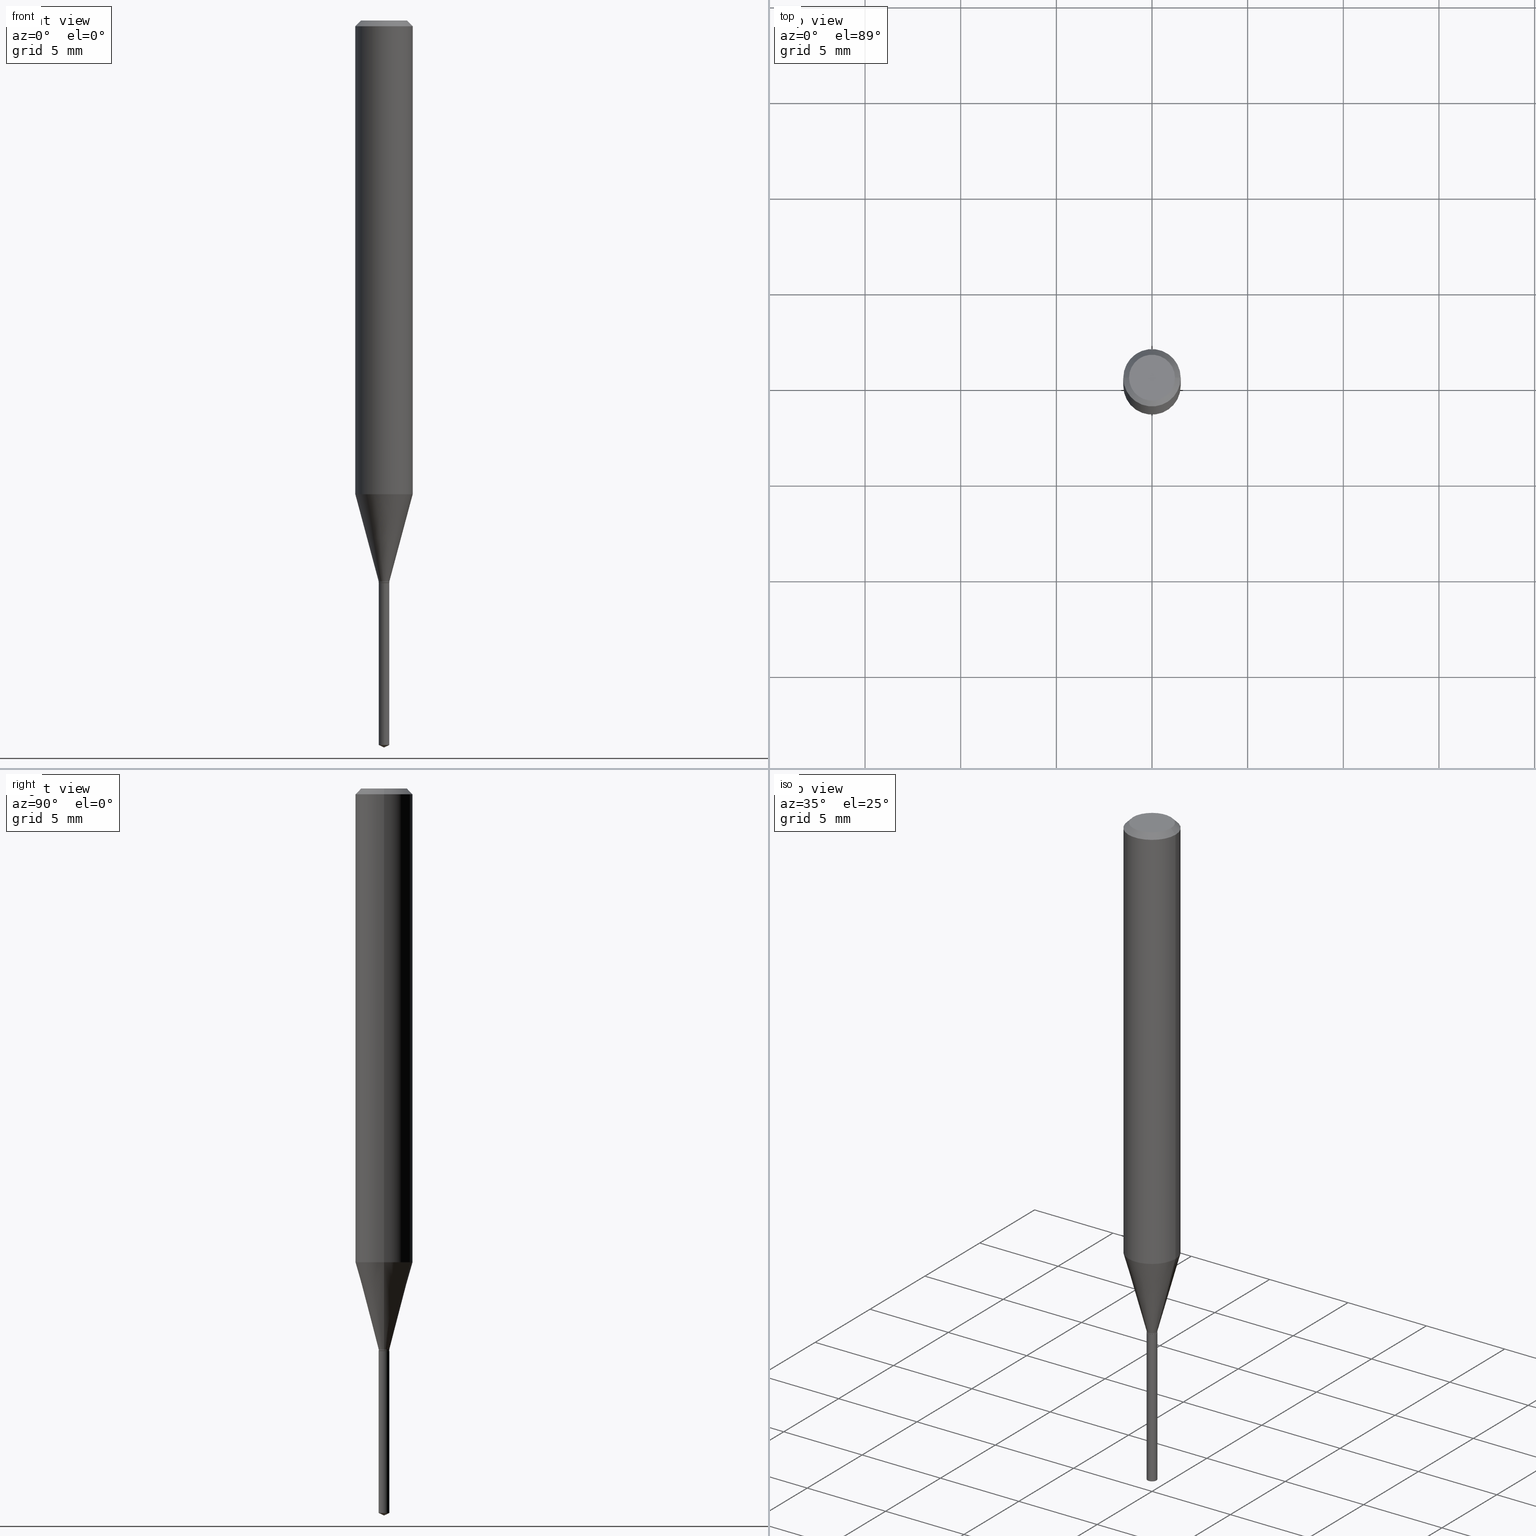
[diagram: canonical four-view strip — front | top / right | iso, engineering-drawing reading convention]
A machine part, canonical four-view strip (front | top / right | iso — engineering-drawing reading convention). The complete STEP part file that produces these views, byte-faithful:
ISO-10303-21;
HEADER;
FILE_DESCRIPTION (( 'STEP AP203' ),
    '1' );
FILE_NAME ('07431.STEP',
    '2024-04-23T21:22:15',
    ( '' ),
    ( '' ),
    'SwSTEP 2.0',
    'SolidWorks 2023',
    '' );
FILE_SCHEMA (( 'CONFIG_CONTROL_DESIGN' ));
ENDSEC;

DATA;
#1 = DIRECTION ( 'NONE',  ( 0.7071067811865453523, -7.319954787623248157E-15, -0.7071067811865496822 ) ) ;
#2 = CC_DESIGN_PERSON_AND_ORGANIZATION_ASSIGNMENT ( #396, #263, ( #89 ) ) ;
#3 = CARTESIAN_POINT ( 'NONE',  ( 7.815970093364752538E-17, 0.01099999999999595919, -1.157499999999999973 ) ) ;
#4 = AXIS2_PLACEMENT_3D ( 'NONE', #374, #405, #168 ) ;
#5 = AXIS2_PLACEMENT_3D ( 'NONE', #469, #471, #432 ) ;
#6 = CARTESIAN_POINT ( 'NONE',  ( -7.681258945451250718E-17, -0.01100000000000521221, -1.490970615760294882 ) ) ;
#7 = DIRECTION ( 'NONE',  ( -0.7071067811865453523, 2.468850131082234184E-15, -0.7071067811865496822 ) ) ;
#8 = FACE_OUTER_BOUND ( 'NONE', #66, .T. ) ;
#9 = LINE ( 'NONE', #92, #246 ) ;
#10 = EDGE_CURVE ( 'NONE', #17, #262, #480, .T. ) ;
#11 = AXIS2_PLACEMENT_3D ( 'NONE', #378, #463, #353 ) ;
#12 = APPROVAL_ROLE ( '' ) ;
#13 = CC_DESIGN_SECURITY_CLASSIFICATION ( #451, ( #89 ) ) ;
#14 = ORIENTED_EDGE ( 'NONE', *, *, #281, .T. ) ;
#15 = EDGE_CURVE ( 'NONE', #476, #156, #125, .T. ) ;
#16 = DIRECTION ( 'NONE',  ( -0.2588190451025211281, 5.211531920934547886E-15, 0.9659258262890679791 ) ) ;
#17 = VERTEX_POINT ( 'NONE', #135 ) ;
#18 = ORIENTED_EDGE ( 'NONE', *, *, #487, .T. ) ;
#19 = CONICAL_SURFACE ( 'NONE', #365, 0.05904999999999999832, 0.7853981633974452814 ) ;
#20 = FACE_OUTER_BOUND ( 'NONE', #51, .T. ) ;
#21 = EDGE_LOOP ( 'NONE', ( #418, #55, #244, #319 ) ) ;
#22 = FACE_OUTER_BOUND ( 'NONE', #248, .T. ) ;
#23 = CARTESIAN_POINT ( 'NONE',  ( 0.05905000000000006077, -4.123439461173744764E-16, 2.879382386107503023E-30 ) ) ;
#24 = APPROVAL_ROLE ( '' ) ;
#25 = DIRECTION ( 'NONE',  ( -2.445468806185136597E-29, 3.491481338843145583E-15, 1.000000000000000000 ) ) ;
#26 = CIRCLE ( 'NONE', #48, 0.04724000000000000421 ) ;
#27 = ORGANIZATION ( 'UNSPECIFIED', 'UNSPECIFIED', '' ) ;
#28 = MECHANICAL_CONTEXT ( 'NONE', #317, 'mechanical' ) ;
#29 = EDGE_CURVE ( 'NONE', #176, #223, #288, .T. ) ;
#30 = PERSON_AND_ORGANIZATION ( #247, #27 ) ;
#31 = CARTESIAN_POINT ( 'NONE',  ( 2.822560096098884713E-29, -4.029867761292758977E-15, -1.154199999999999893 ) ) ;
#32 = LOCAL_TIME ( 17, 22, 15.00000000000000000, #124 ) ;
#33 = DIRECTION ( 'NONE',  ( -2.445468806185136597E-29, 3.491481338843145583E-15, 1.000000000000000000 ) ) ;
#34 = ADVANCED_FACE ( 'NONE', ( #462 ), #38, .F. ) ;
#35 = PERSON_AND_ORGANIZATION ( #247, #27 ) ;
#36 = CYLINDRICAL_SURFACE ( 'NONE', #80, 0.01100000000000000110 ) ;
#37 = CARTESIAN_POINT ( 'NONE',  ( 3.643263205341343331E-29, -5.209790227071326827E-15, -1.490970615760294882 ) ) ;
#38 = PLANE ( 'NONE',  #326 ) ;
#39 = PERSON_AND_ORGANIZATION ( #247, #27 ) ;
#40 = CARTESIAN_POINT ( 'NONE',  ( -0.05905000000000006077, 4.195754854663395916E-16, -2.904631170795524694E-30 ) ) ;
#41 = CARTESIAN_POINT ( 'NONE',  ( -7.681258945452060533E-17, -0.01100000000000404127, -1.157499999999999973 ) ) ;
#42 = CARTESIAN_POINT ( 'NONE',  ( 2.830630143159295633E-29, -4.041389649710940900E-15, -1.157499999999999973 ) ) ;
#43 = APPROVAL_PERSON_ORGANIZATION ( #30, #341, #112 ) ;
#44 = DIRECTION ( 'NONE',  ( -2.445468806185136597E-29, 3.491481338843145583E-15, 1.000000000000000000 ) ) ;
#45 =( LENGTH_UNIT ( ) NAMED_UNIT ( * ) SI_UNIT ( $, .METRE. ) );
#46 = EDGE_LOOP ( 'NONE', ( #18, #114, #404, #293 ) ) ;
#47 = PERSON_AND_ORGANIZATION ( #247, #27 ) ;
#48 = AXIS2_PLACEMENT_3D ( 'NONE', #194, #120, #74 ) ;
#49 = EDGE_CURVE ( 'NONE', #126, #176, #122, .T. ) ;
#50 = DIRECTION ( 'NONE',  ( -1.000000000000000000, 6.982962677686266711E-15, 0.000000000000000000 ) ) ;
#51 = EDGE_LOOP ( 'NONE', ( #258, #446, #108, #136 ) ) ;
#52 = CARTESIAN_POINT ( 'NONE',  ( 2.888098660104664204E-31, -4.123439461173780263E-17, -0.01181000000000007218 ) ) ;
#53 = CARTESIAN_POINT ( 'NONE',  ( 2.384026301422862400E-29, -3.403757725993666876E-15, -0.9748749586963152414 ) ) ;
#54 = CARTESIAN_POINT ( 'NONE',  ( 2.830630143159295633E-29, -4.041389649710940900E-15, -1.157499999999999973 ) ) ;
#55 = ORIENTED_EDGE ( 'NONE', *, *, #186, .T. ) ;
#56 = APPROVAL_STATUS ( 'not_yet_approved' ) ;
#57 = VECTOR ( 'NONE', #475, 39.37007874015748854 ) ;
#58 = CIRCLE ( 'NONE', #161, 0.01049999999999999892 ) ;
#59 = LOCAL_TIME ( 17, 22, 15.00000000000000000, #98 ) ;
#60 = DIMENSIONAL_EXPONENTS ( 1.000000000000000000, 0.000000000000000000, 0.000000000000000000, 0.000000000000000000, 0.000000000000000000, 0.000000000000000000, 0.000000000000000000 ) ;
#61 = ADVANCED_FACE ( 'NONE', ( #188 ), #36, .T. ) ;
#62 = DIRECTION ( 'NONE',  ( 1.000000000000000000, -6.982962677686266711E-15, 0.000000000000000000 ) ) ;
#63 = VERTEX_POINT ( 'NONE', #155 ) ;
#64 = DIRECTION ( 'NONE',  ( -0.7071067811865218156, 7.493145998870261075E-15, 0.7071067811865732189 ) ) ;
#65 = CARTESIAN_POINT ( 'NONE',  ( 3.643263205341343331E-29, -5.209790227071326827E-15, -1.490970615760294882 ) ) ;
#66 = EDGE_LOOP ( 'NONE', ( #303, #261, #84, #78 ) ) ;
#67 = SHAPE_DEFINITION_REPRESENTATION ( #316, #232 ) ;
#68 = ORIENTED_EDGE ( 'NONE', *, *, #15, .T. ) ;
#69 = FACE_OUTER_BOUND ( 'NONE', #21, .T. ) ;
#70 = ADVANCED_FACE ( 'NONE', ( #192 ), #205, .T. ) ;
#71 = AXIS2_PLACEMENT_3D ( 'NONE', #212, #368, #62 ) ;
#72 = AXIS2_PLACEMENT_3D ( 'NONE', #117, #426, #115 ) ;
#73 = AXIS2_PLACEMENT_3D ( 'NONE', #477, #434, #241 ) ;
#74 = DIRECTION ( 'NONE',  ( 1.000000000000000000, -6.982962677686266711E-15, 4.876185090822587894E-29 ) ) ;
#75 = DIRECTION ( 'NONE',  ( 1.000000000000000000, -6.982962677686245411E-15, 0.000000000000000000 ) ) ;
#76 = ADVANCED_FACE ( 'NONE', ( #314 ), #300, .T. ) ;
#77 = ORIENTED_EDGE ( 'NONE', *, *, #214, .F. ) ;
#78 = ORIENTED_EDGE ( 'NONE', *, *, #337, .F. ) ;
#79 = CARTESIAN_POINT ( 'NONE',  ( 0.05904999999999999832, -4.463468013801466955E-16, -0.01181000000000007218 ) ) ;
#80 = AXIS2_PLACEMENT_3D ( 'NONE', #425, #304, #151 ) ;
#81 = DIRECTION ( 'NONE',  ( -2.445468806185136877E-29, 3.491481338843145188E-15, 1.000000000000000000 ) ) ;
#82 = AXIS2_PLACEMENT_3D ( 'NONE', #134, #196, #460 ) ;
#83 = CARTESIAN_POINT ( 'NONE',  ( 0.01099999999999999936, -4.106680350747307501E-15, -1.154199999999999893 ) ) ;
#84 = ORIENTED_EDGE ( 'NONE', *, *, #214, .T. ) ;
#85 = CARTESIAN_POINT ( 'NONE',  ( 4.132873053354867254E-48, -5.900647395337818946E-34, -1.690012582823346072E-19 ) ) ;
#86 = CARTESIAN_POINT ( 'NONE',  ( 2.830630143159295633E-29, -4.041389649710940900E-15, -1.157499999999999973 ) ) ;
#87 = ORIENTED_EDGE ( 'NONE', *, *, #175, .T. ) ;
#88 = DIRECTION ( 'NONE',  ( -2.445468806185136877E-29, 3.491481338843145188E-15, 1.000000000000000000 ) ) ;
#89 = PRODUCT_DEFINITION_FORMATION_WITH_SPECIFIED_SOURCE ( 'ANY', '', #438, .NOT_KNOWN. ) ;
#90 = APPROVAL_STATUS ( 'not_yet_approved' ) ;
#91 = CC_DESIGN_PERSON_AND_ORGANIZATION_ASSIGNMENT ( #461, #424, ( #89 ) ) ;
#92 = CARTESIAN_POINT ( 'NONE',  ( 0.01049999999999999892, -4.114710757826646417E-15, -1.157499999999999973 ) ) ;
#93 = EDGE_CURVE ( 'NONE', #390, #435, #444, .T. ) ;
#94 = ORIENTED_EDGE ( 'NONE', *, *, #49, .T. ) ;
#95 = CARTESIAN_POINT ( 'NONE',  ( 0.04724000000000000421, -3.852183633974369345E-16, -3.380025165621689721E-19 ) ) ;
#96 = DIRECTION ( 'NONE',  ( -6.982962677686265922E-15, -1.000000000000000000, 0.000000000000000000 ) ) ;
#97 = ORIENTED_EDGE ( 'NONE', *, *, #123, .F. ) ;
#98 = COORDINATED_UNIVERSAL_TIME_OFFSET ( 5, 0, .BEHIND. ) ;
#99 = APPLICATION_PROTOCOL_DEFINITION ( 'international standard', 'config_control_design', 1994, #317 ) ;
#100 = ADVANCED_FACE ( 'NONE', ( #454 ), #225, .T. ) ;
#101 = DIRECTION ( 'NONE',  ( -6.982962677686265922E-15, -1.000000000000000000, 0.000000000000000000 ) ) ;
#102 = CLOSED_SHELL ( 'NONE', ( #76, #385, #195, #70, #137, #320, #179, #285, #162, #152, #34, #389 ) ) ;
#103 = VECTOR ( 'NONE', #109, 39.37007874015748143 ) ;
#104 = LINE ( 'NONE', #401, #436 ) ;
#105 = VECTOR ( 'NONE', #81, 39.37007874015748143 ) ;
#106 = CARTESIAN_POINT ( 'NONE',  ( -0.01099999999999999936, 7.815970093361101591E-17, -5.410828599280396199E-31 ) ) ;
#107 = ORIENTED_EDGE ( 'NONE', *, *, #413, .F. ) ;
#108 = ORIENTED_EDGE ( 'NONE', *, *, #467, .T. ) ;
#109 = DIRECTION ( 'NONE',  ( -2.436895557736890074E-29, 3.503758718580032420E-15, 1.000000000000000000 ) ) ;
#110 = CONICAL_SURFACE ( 'NONE', #391, 0.05904999999999999832, 0.7853981633974452814 ) ;
#111 = CC_DESIGN_APPROVAL ( #356, ( #89 ) ) ;
#112 = APPROVAL_ROLE ( '' ) ;
#113 = DIRECTION ( 'NONE',  ( 2.445468806185136597E-29, -3.491481338843145583E-15, -1.000000000000000000 ) ) ;
#114 = ORIENTED_EDGE ( 'NONE', *, *, #422, .T. ) ;
#115 = DIRECTION ( 'NONE',  ( 1.000000000000000000, -6.982962677686245411E-15, 0.000000000000000000 ) ) ;
#116 = APPROVAL_DATE_TIME ( #488, #242 ) ;
#117 = CARTESIAN_POINT ( 'NONE',  ( 2.822560096098884713E-29, -4.029867761292758977E-15, -1.154199999999999893 ) ) ;
#118 =( NAMED_UNIT ( * ) PLANE_ANGLE_UNIT ( ) SI_UNIT ( $, .RADIAN. ) );
#119 = CARTESIAN_POINT ( 'NONE',  ( 0.000000000000000000, 0.000000000000000000, 0.000000000000000000 ) ) ;
#120 = DIRECTION ( 'NONE',  ( -2.445468806185136597E-29, 3.491481338843145583E-15, 1.000000000000000000 ) ) ;
#121 = CALENDAR_DATE ( 2024, 23, 4 ) ;
#122 = LINE ( 'NONE', #278, #442 ) ;
#123 = EDGE_CURVE ( 'NONE', #390, #447, #312, .T. ) ;
#124 = COORDINATED_UNIVERSAL_TIME_OFFSET ( 5, 0, .BEHIND. ) ;
#125 = CIRCLE ( 'NONE', #170, 0.01099999999999999936 ) ;
#126 = VERTEX_POINT ( 'NONE', #236 ) ;
#127 = LOCAL_TIME ( 17, 22, 15.00000000000000000, #237 ) ;
#128 = ORIENTED_EDGE ( 'NONE', *, *, #129, .T. ) ;
#129 = EDGE_CURVE ( 'NONE', #447, #63, #269, .T. ) ;
#130 = ORIENTED_EDGE ( 'NONE', *, *, #175, .F. ) ;
#131 = DIRECTION ( 'NONE',  ( -2.436895557736890355E-29, 3.503758718580032420E-15, 1.000000000000000000 ) ) ;
#132 = DIRECTION ( 'NONE',  ( 1.000000000000000000, -6.982962677686266711E-15, 4.876185090822587894E-29 ) ) ;
#133 = VECTOR ( 'NONE', #16, 39.37007874015748854 ) ;
#134 = CARTESIAN_POINT ( 'NONE',  ( 2.384026301422862400E-29, -3.403757725993666876E-15, -0.9748749586963152414 ) ) ;
#135 = CARTESIAN_POINT ( 'NONE',  ( 3.645839443930160666E-29, -5.241973418867586655E-15, -1.496099999999999985 ) ) ;
#136 = ORIENTED_EDGE ( 'NONE', *, *, #453, .F. ) ;
#137 = ADVANCED_FACE ( 'NONE', ( #197 ), #414, .T. ) ;
#138 = CARTESIAN_POINT ( 'NONE',  ( 2.830630143159295633E-29, -4.041389649710940900E-15, -1.157499999999999973 ) ) ;
#139 = DIRECTION ( 'NONE',  ( 0.000000000000000000, 0.000000000000000000, 1.000000000000000000 ) ) ;
#140 = CIRCLE ( 'NONE', #419, 0.05905000000000011628 ) ;
#141 = AXIS2_PLACEMENT_3D ( 'NONE', #119, #271, #226 ) ;
#142 = DIRECTION ( 'NONE',  ( -2.445468806185136597E-29, 3.491481338843145583E-15, 1.000000000000000000 ) ) ;
#143 = ORIENTED_EDGE ( 'NONE', *, *, #249, .F. ) ;
#144 = CYLINDRICAL_SURFACE ( 'NONE', #73, 0.01100000000000000110 ) ;
#145 = APPLICATION_PROTOCOL_DEFINITION ( 'international standard', 'config_control_design', 1994, #268 ) ;
#146 = FACE_OUTER_BOUND ( 'NONE', #336, .T. ) ;
#147 = APPROVAL_STATUS ( 'not_yet_approved' ) ;
#148 = DIRECTION ( 'NONE',  ( -2.445468806185136597E-29, 3.491481338843145583E-15, 1.000000000000000000 ) ) ;
#149 = AXIS2_PLACEMENT_3D ( 'NONE', #85, #231, #384 ) ;
#150 = APPROVAL_PERSON_ORGANIZATION ( #409, #242, #24 ) ;
#151 = DIRECTION ( 'NONE',  ( -6.982962677686265922E-15, -1.000000000000000000, 0.000000000000000000 ) ) ;
#152 = ADVANCED_FACE ( 'NONE', ( #275 ), #421, .F. ) ;
#153 = ORIENTED_EDGE ( 'NONE', *, *, #29, .F. ) ;
#154 = LINE ( 'NONE', #79, #410 ) ;
#155 = CARTESIAN_POINT ( 'NONE',  ( 0.05905000000000011628, -3.816101672111041796E-15, -0.9748749586963152414 ) ) ;
#156 = VERTEX_POINT ( 'NONE', #3 ) ;
#157 = CARTESIAN_POINT ( 'NONE',  ( -0.01099999999999999936, -3.956596134233527308E-15, -1.154199999999999893 ) ) ;
#158 = CC_DESIGN_PERSON_AND_ORGANIZATION_ASSIGNMENT ( #257, #220, ( #451 ) ) ;
#159 = CARTESIAN_POINT ( 'NONE',  ( 0.000000000000000000, 0.000000000000000000, 0.000000000000000000 ) ) ;
#160 = DIRECTION ( 'NONE',  ( -2.445468806185136597E-29, 3.491481338843145583E-15, 1.000000000000000000 ) ) ;
#161 = AXIS2_PLACEMENT_3D ( 'NONE', #245, #25, #182 ) ;
#162 = ADVANCED_FACE ( 'NONE', ( #433 ), #110, .T. ) ;
#163 = APPROVAL_PERSON_ORGANIZATION ( #47, #356, #12 ) ;
#164 = DIRECTION ( 'NONE',  ( -6.982962677686265922E-15, -1.000000000000000000, 0.000000000000000000 ) ) ;
#165 = CARTESIAN_POINT ( 'NONE',  ( 2.829407408756202832E-29, -4.039643909041518608E-15, -1.156999999999999806 ) ) ;
#166 = UNCERTAINTY_MEASURE_WITH_UNIT (LENGTH_MEASURE( 1.000000000000000082E-05 ), #234, 'distance_accuracy_value', 'NONE');
#167 = ORIENTED_EDGE ( 'NONE', *, *, #10, .T. ) ;
#168 = DIRECTION ( 'NONE',  ( 1.000000000000000000, -6.982962677686265922E-15, 4.876176775795936353E-29 ) ) ;
#169 = CC_DESIGN_DATE_AND_TIME_ASSIGNMENT ( #279, #465, ( #443 ) ) ;
#170 = AXIS2_PLACEMENT_3D ( 'NONE', #290, #210, #360 ) ;
#171 = AXIS2_PLACEMENT_3D ( 'NONE', #485, #139, #376 ) ;
#172 = PLANE ( 'NONE',  #327 ) ;
#173 = EDGE_LOOP ( 'NONE', ( #322, #167, #298 ) ) ;
#174 = EDGE_LOOP ( 'NONE', ( #267, #441, #217 ) ) ;
#175 = EDGE_CURVE ( 'NONE', #347, #63, #140, .T. ) ;
#176 = VERTEX_POINT ( 'NONE', #489 ) ;
#177 = CYLINDRICAL_SURFACE ( 'NONE', #335, 0.05905000000000006077 ) ;
#178 = SECURITY_CLASSIFICATION_LEVEL ( 'unclassified' ) ;
#179 = ADVANCED_FACE ( 'NONE', ( #146 ), #375, .T. ) ;
#180 = ORIENTED_EDGE ( 'NONE', *, *, #281, .F. ) ;
#181 = AXIS2_PLACEMENT_3D ( 'NONE', #31, #148, #75 ) ;
#182 = DIRECTION ( 'NONE',  ( 1.000000000000000000, -6.982962677686287221E-15, 0.000000000000000000 ) ) ;
#183 = FACE_OUTER_BOUND ( 'NONE', #46, .T. ) ;
#184 = ORIENTED_EDGE ( 'NONE', *, *, #413, .T. ) ;
#185 = ORIENTED_EDGE ( 'NONE', *, *, #129, .F. ) ;
#186 = EDGE_CURVE ( 'NONE', #301, #223, #154, .T. ) ;
#187 = ORIENTED_EDGE ( 'NONE', *, *, #265, .F. ) ;
#188 = FACE_OUTER_BOUND ( 'NONE', #251, .T. ) ;
#189 = ORIENTED_EDGE ( 'NONE', *, *, #482, .F. ) ;
#190 = AXIS2_PLACEMENT_3D ( 'NONE', #138, #291, #101 ) ;
#191 = CIRCLE ( 'NONE', #5, 0.01099999999999999936 ) ;
#192 = FACE_OUTER_BOUND ( 'NONE', #369, .T. ) ;
#193 = ORIENTED_EDGE ( 'NONE', *, *, #377, .T. ) ;
#194 = CARTESIAN_POINT ( 'NONE',  ( 8.265746106709734507E-48, -1.180129479067563789E-33, -3.380025165646692144E-19 ) ) ;
#195 = ADVANCED_FACE ( 'NONE', ( #183 ), #339, .T. ) ;
#196 = DIRECTION ( 'NONE',  ( -2.445468806185136597E-29, 3.491481338843145583E-15, 1.000000000000000000 ) ) ;
#197 = FACE_OUTER_BOUND ( 'NONE', #481, .T. ) ;
#198 = PERSON_AND_ORGANIZATION_ROLE ( 'creator' ) ;
#199 = CIRCLE ( 'NONE', #190, 0.01099999999999999936 ) ;
#200 = DATE_AND_TIME ( #203, #127 ) ;
#201 = DIRECTION ( 'NONE',  ( 1.000000000000000000, -6.982962677686287221E-15, 0.000000000000000000 ) ) ;
#202 = DIRECTION ( 'NONE',  ( -2.445468806185136597E-29, 3.491481338843145583E-15, 1.000000000000000000 ) ) ;
#203 = CALENDAR_DATE ( 2024, 23, 4 ) ;
#204 = CARTESIAN_POINT ( 'NONE',  ( 2.888098660104664204E-31, -4.123439461173780263E-17, -0.01181000000000007218 ) ) ;
#205 = CONICAL_SURFACE ( 'NONE', #72, 0.01099999999999999936, 0.2617993877991498519 ) ;
#206 = CIRCLE ( 'NONE', #486, 0.01099999999999999936 ) ;
#207 = CARTESIAN_POINT ( 'NONE',  ( 0.01049999999999999892, -4.114710757826646417E-15, -1.157499999999999973 ) ) ;
#208 = FACE_OUTER_BOUND ( 'NONE', #235, .T. ) ;
#209 = COORDINATED_UNIVERSAL_TIME_OFFSET ( 5, 0, .BEHIND. ) ;
#210 = DIRECTION ( 'NONE',  ( -2.436895557736890355E-29, 3.503758718580032420E-15, 1.000000000000000000 ) ) ;
#211 = EDGE_LOOP ( 'NONE', ( #403, #187, #94, #440 ) ) ;
#212 = CARTESIAN_POINT ( 'NONE',  ( 2.888098660104664204E-31, -4.123439461173780263E-17, -0.01181000000000007218 ) ) ;
#213 = AXIS2_PLACEMENT_3D ( 'NONE', #383, #44, #233 ) ;
#214 = EDGE_CURVE ( 'NONE', #332, #476, #224, .T. ) ;
#215 = ORIENTED_EDGE ( 'NONE', *, *, #307, .F. ) ;
#216 = ORIENTED_EDGE ( 'NONE', *, *, #453, .T. ) ;
#217 = ORIENTED_EDGE ( 'NONE', *, *, #351, .F. ) ;
#218 = ORIENTED_EDGE ( 'NONE', *, *, #307, .T. ) ;
#219 = CYLINDRICAL_SURFACE ( 'NONE', #4, 0.01099999999999999936 ) ;
#220 = PERSON_AND_ORGANIZATION_ROLE ( 'classification_officer' ) ;
#221 = CLOSED_SHELL ( 'NONE', ( #61, #100, #227, #395, #366 ) ) ;
#222 = VECTOR ( 'NONE', #270, 39.37007874015748143 ) ;
#223 = VERTEX_POINT ( 'NONE', #450 ) ;
#224 = LINE ( 'NONE', #308, #343 ) ;
#225 = CONICAL_SURFACE ( 'NONE', #11, 84.42940631927268669, 1.134464013796308457 ) ;
#226 = DIRECTION ( 'NONE',  ( 1.000000000000000000, -6.982962677686265922E-15, 4.876176775795936353E-29 ) ) ;
#227 = ADVANCED_FACE ( 'NONE', ( #456 ), #400, .T. ) ;
#228 = ORIENTED_EDGE ( 'NONE', *, *, #473, .T. ) ;
#229 = DIRECTION ( 'NONE',  ( -6.982962677686268288E-15, -1.000000000000000000, 3.520397390770522895E-15 ) ) ;
#230 = APPROVAL_DATE_TIME ( #200, #356 ) ;
#231 = DIRECTION ( 'NONE',  ( 2.438088387897960049E-29, -3.491481338843145188E-15, -1.000000000000000000 ) ) ;
#232 = ADVANCED_BREP_SHAPE_REPRESENTATION ( '07431', ( #287, #449, #171 ), #468 ) ;
#233 = DIRECTION ( 'NONE',  ( 1.000000000000000000, -6.982962677686287221E-15, 0.000000000000000000 ) ) ;
#234 =( CONVERSION_BASED_UNIT ( 'INCH', #423 ) LENGTH_UNIT ( ) NAMED_UNIT ( #60 ) );
#235 = EDGE_LOOP ( 'NONE', ( #68, #362 ) ) ;
#236 = CARTESIAN_POINT ( 'NONE',  ( -0.04724000000000000421, 3.504923541997677355E-16, -3.380025165670481712E-19 ) ) ;
#237 = COORDINATED_UNIVERSAL_TIME_OFFSET ( 5, 0, .BEHIND. ) ;
#238 = EDGE_CURVE ( 'NONE', #17, #332, #306, .T. ) ;
#239 = DIRECTION ( 'NONE',  ( 1.000000000000000000, -6.982962677686266711E-15, 0.000000000000000000 ) ) ;
#240 = DIRECTION ( 'NONE',  ( 1.000000000000000000, -6.982962677686245411E-15, 0.000000000000000000 ) ) ;
#241 = DIRECTION ( 'NONE',  ( -6.982962677686265922E-15, -1.000000000000000000, 0.000000000000000000 ) ) ;
#242 = APPROVAL ( #56, 'UNSPECIFIED' ) ;
#243 = EDGE_LOOP ( 'NONE', ( #215, #189 ) ) ;
#244 = ORIENTED_EDGE ( 'NONE', *, *, #331, .T. ) ;
#245 = CARTESIAN_POINT ( 'NONE',  ( 2.830630143159295633E-29, -4.041389649710940900E-15, -1.157499999999999973 ) ) ;
#246 = VECTOR ( 'NONE', #357, 39.37007874015748143 ) ;
#247 = PERSON ( 'UNSPECIFIED', 'UNSPECIFIED', 'UNSPECIFIED', ('UNSPECIFIED'), ('UNSPECIFIED'), ('UNSPECIFIED') ) ;
#248 = EDGE_LOOP ( 'NONE', ( #330, #87, #373, #153 ) ) ;
#249 = EDGE_CURVE ( 'NONE', #447, #259, #206, .T. ) ;
#250 = LINE ( 'NONE', #106, #255 ) ;
#251 = EDGE_LOOP ( 'NONE', ( #321, #407, #310, #77 ) ) ;
#252 = DATE_TIME_ROLE ( 'classification_date' ) ;
#253 = CALENDAR_DATE ( 2024, 23, 4 ) ;
#254 = CC_DESIGN_PERSON_AND_ORGANIZATION_ASSIGNMENT ( #39, #198, ( #443 ) ) ;
#255 = VECTOR ( 'NONE', #406, 39.37007874015748143 ) ;
#256 = AXIS2_PLACEMENT_3D ( 'NONE', #394, #202, #240 ) ;
#257 = PERSON_AND_ORGANIZATION ( #247, #27 ) ;
#258 = ORIENTED_EDGE ( 'NONE', *, *, #292, .F. ) ;
#259 = VERTEX_POINT ( 'NONE', #157 ) ;
#260 = FACE_OUTER_BOUND ( 'NONE', #361, .T. ) ;
#261 = ORIENTED_EDGE ( 'NONE', *, *, #351, .T. ) ;
#262 = VERTEX_POINT ( 'NONE', #412 ) ;
#263 = PERSON_AND_ORGANIZATION_ROLE ( 'design_supplier' ) ;
#264 = CARTESIAN_POINT ( 'NONE',  ( -9.228500701063235563E-28, 1.327154942851870051E-13, 37.87397874015748300 ) ) ;
#265 = EDGE_CURVE ( 'NONE', #126, #301, #26, .T. ) ;
#266 = APPROVAL_DATE_TIME ( #386, #341 ) ;
#267 = ORIENTED_EDGE ( 'NONE', *, *, #10, .F. ) ;
#268 = APPLICATION_CONTEXT ( 'configuration controlled 3d designs of mechanical parts and assemblies' ) ;
#269 = LINE ( 'NONE', #83, #272 ) ;
#270 = DIRECTION ( 'NONE',  ( -6.328713451373352024E-15, -0.9063077870366459399, 0.4226182617407078790 ) ) ;
#271 = DIRECTION ( 'NONE',  ( -2.445468806185136597E-29, 3.491481338843145583E-15, 1.000000000000000000 ) ) ;
#272 = VECTOR ( 'NONE', #346, 39.37007874015748854 ) ;
#273 = PRODUCT_RELATED_PRODUCT_CATEGORY ( 'detail', '', ( #438 ) ) ;
#274 = CARTESIAN_POINT ( 'NONE',  ( -0.01099999999999999936, -3.956596134233527308E-15, -1.156999999999999806 ) ) ;
#275 = FACE_OUTER_BOUND ( 'NONE', #358, .T. ) ;
#276 = ORIENTED_EDGE ( 'NONE', *, *, #487, .F. ) ;
#277 = LINE ( 'NONE', #398, #133 ) ;
#278 = CARTESIAN_POINT ( 'NONE',  ( -0.05904999999999999832, 3.711095515056362547E-16, -0.01181000000000007218 ) ) ;
#279 = DATE_AND_TIME ( #350, #32 ) ;
#280 = CARTESIAN_POINT ( 'NONE',  ( 0.01099999999999999936, -4.106680350747307501E-15, -1.154199999999999893 ) ) ;
#281 = EDGE_CURVE ( 'NONE', #259, #347, #277, .T. ) ;
#282 = LOCAL_TIME ( 17, 22, 15.00000000000000000, #415 ) ;
#283 = CARTESIAN_POINT ( 'NONE',  ( 2.888098660104664204E-31, -4.123439461173780263E-17, -0.01181000000000007218 ) ) ;
#284 = EDGE_LOOP ( 'NONE', ( #218, #483, #329, #370 ) ) ;
#285 = ADVANCED_FACE ( 'NONE', ( #22 ), #177, .T. ) ;
#286 = CARTESIAN_POINT ( 'NONE',  ( -0.01049999999999999892, -3.964133435282018719E-15, -1.157499999999999973 ) ) ;
#287 = MANIFOLD_SOLID_BREP ( 'Body-Move/Copy2[1]', #221 ) ;
#288 = CIRCLE ( 'NONE', #71, 0.05904999999999999832 ) ;
#289 = CIRCLE ( 'NONE', #349, 0.05904999999999999832 ) ;
#290 = CARTESIAN_POINT ( 'NONE',  ( 2.830630143159295633E-29, -4.041389649710940900E-15, -1.157499999999999973 ) ) ;
#291 = DIRECTION ( 'NONE',  ( -2.436895557736890355E-29, 3.503758718580032420E-15, 1.000000000000000000 ) ) ;
#292 = EDGE_CURVE ( 'NONE', #470, #435, #104, .T. ) ;
#293 = ORIENTED_EDGE ( 'NONE', *, *, #297, .F. ) ;
#294 = VECTOR ( 'NONE', #88, 39.37007874015748143 ) ;
#295 = CIRCLE ( 'NONE', #420, 0.01049999999999999892 ) ;
#296 = LINE ( 'NONE', #448, #103 ) ;
#297 = EDGE_CURVE ( 'NONE', #63, #223, #372, .T. ) ;
#298 = ORIENTED_EDGE ( 'NONE', *, *, #439, .F. ) ;
#299 = DIRECTION ( 'NONE',  ( -2.436895557736890074E-29, 3.503758718580032420E-15, 1.000000000000000000 ) ) ;
#300 = CONICAL_SURFACE ( 'NONE', #313, 0.01049999999999999892, 0.7853981633974119747 ) ;
#301 = VERTEX_POINT ( 'NONE', #95 ) ;
#302 = LOCAL_TIME ( 17, 22, 15.00000000000000000, #209 ) ;
#303 = ORIENTED_EDGE ( 'NONE', *, *, #315, .F. ) ;
#304 = DIRECTION ( 'NONE',  ( -2.436895557736890355E-29, 3.503758718580032420E-15, 1.000000000000000000 ) ) ;
#305 =( NAMED_UNIT ( * ) SI_UNIT ( $, .STERADIAN. ) SOLID_ANGLE_UNIT ( ) );
#306 = LINE ( 'NONE', #452, #222 ) ;
#307 = EDGE_CURVE ( 'NONE', #455, #470, #58, .T. ) ;
#308 = CARTESIAN_POINT ( 'NONE',  ( -7.681258945452061765E-17, -0.01100000000000404300, -1.157499999999999973 ) ) ;
#309 = DIRECTION ( 'NONE',  ( -2.445468806185136597E-29, 3.491481338843145583E-15, 1.000000000000000000 ) ) ;
#310 = ORIENTED_EDGE ( 'NONE', *, *, #15, .F. ) ;
#311 = DIRECTION ( 'NONE',  ( 1.000000000000000000, -6.982962677686266711E-15, 4.876176775795935793E-29 ) ) ;
#312 = LINE ( 'NONE', #457, #294 ) ;
#313 = AXIS2_PLACEMENT_3D ( 'NONE', #42, #309, #201 ) ;
#314 = FACE_OUTER_BOUND ( 'NONE', #284, .T. ) ;
#315 = EDGE_CURVE ( 'NONE', #262, #156, #296, .T. ) ;
#316 = PRODUCT_DEFINITION_SHAPE ( 'NONE', 'NONE',  #443 ) ;
#317 = APPLICATION_CONTEXT ( 'configuration controlled 3d designs of mechanical parts and assemblies' ) ;
#318 = AXIS2_PLACEMENT_3D ( 'NONE', #359, #474, #132 ) ;
#319 = ORIENTED_EDGE ( 'NONE', *, *, #49, .F. ) ;
#320 = ADVANCED_FACE ( 'NONE', ( #260 ), #219, .T. ) ;
#321 = ORIENTED_EDGE ( 'NONE', *, *, #439, .T. ) ;
#322 = ORIENTED_EDGE ( 'NONE', *, *, #238, .F. ) ;
#323 = CARTESIAN_POINT ( 'NONE',  ( 0.000000000000000000, 0.000000000000000000, 0.000000000000000000 ) ) ;
#324 = CARTESIAN_POINT ( 'NONE',  ( 2.830630143159295633E-29, -4.041389649710940900E-15, -1.157499999999999973 ) ) ;
#325 = CARTESIAN_POINT ( 'NONE',  ( 3.665860549465548495E-29, -5.213551284776692655E-15, -1.496099999999999985 ) ) ;
#326 = AXIS2_PLACEMENT_3D ( 'NONE', #86, #344, #387 ) ;
#327 = AXIS2_PLACEMENT_3D ( 'NONE', #324, #472, #437 ) ;
#328 = CC_DESIGN_APPROVAL ( #341, ( #443 ) ) ;
#329 = ORIENTED_EDGE ( 'NONE', *, *, #93, .F. ) ;
#330 = ORIENTED_EDGE ( 'NONE', *, *, #422, .F. ) ;
#331 = EDGE_CURVE ( 'NONE', #223, #176, #289, .T. ) ;
#332 = VERTEX_POINT ( 'NONE', #6 ) ;
#333 = DIRECTION ( 'NONE',  ( -2.445468806185136597E-29, 3.491481338843145583E-15, 1.000000000000000000 ) ) ;
#334 = DIRECTION ( 'NONE',  ( 1.000000000000000000, -6.982962677686287221E-15, 0.000000000000000000 ) ) ;
#335 = AXIS2_PLACEMENT_3D ( 'NONE', #323, #333, #484 ) ;
#336 = EDGE_LOOP ( 'NONE', ( #180, #184, #128, #130 ) ) ;
#337 = EDGE_CURVE ( 'NONE', #156, #476, #199, .T. ) ;
#338 = PERSON_AND_ORGANIZATION_ROLE ( 'design_owner' ) ;
#339 = CYLINDRICAL_SURFACE ( 'NONE', #417, 0.05905000000000006077 ) ;
#340 = DIRECTION ( 'NONE',  ( -2.445468806185136597E-29, 3.491481338843145583E-15, 1.000000000000000000 ) ) ;
#341 = APPROVAL ( #147, 'UNSPECIFIED' ) ;
#342 = DESIGN_CONTEXT ( 'detailed design', #268, 'design' ) ;
#343 = VECTOR ( 'NONE', #299, 39.37007874015748143 ) ;
#344 = DIRECTION ( 'NONE',  ( -2.438088387897960049E-29, 3.491481338843145188E-15, 1.000000000000000000 ) ) ;
#345 = DIRECTION ( 'NONE',  ( 1.000000000000000000, -6.982962677686245411E-15, 0.000000000000000000 ) ) ;
#346 = DIRECTION ( 'NONE',  ( 0.2588190451025211281, 1.565188264969622954E-15, 0.9659258262890679791 ) ) ;
#347 = VERTEX_POINT ( 'NONE', #399 ) ;
#348 = DIRECTION ( 'NONE',  ( 1.000000000000000000, -6.982962677686266711E-15, 0.000000000000000000 ) ) ;
#349 = AXIS2_PLACEMENT_3D ( 'NONE', #283, #429, #239 ) ;
#350 = CALENDAR_DATE ( 2024, 23, 4 ) ;
#351 = EDGE_CURVE ( 'NONE', #262, #332, #466, .T. ) ;
#352 = DIRECTION ( 'NONE',  ( -2.436895557736890355E-29, 3.503758718580032420E-15, 1.000000000000000000 ) ) ;
#353 = DIRECTION ( 'NONE',  ( -6.982962677686268288E-15, -1.000000000000000000, 3.520397390770522895E-15 ) ) ;
#354 = CARTESIAN_POINT ( 'NONE',  ( 0.01099999999999999936, -4.116456498496067132E-15, -1.156999999999999806 ) ) ;
#355 = LINE ( 'NONE', #40, #105 ) ;
#356 = APPROVAL ( #90, 'UNSPECIFIED' ) ;
#357 = DIRECTION ( 'NONE',  ( 0.7071067811865218156, -2.468850131081987665E-15, 0.7071067811865732189 ) ) ;
#358 = EDGE_LOOP ( 'NONE', ( #371, #228 ) ) ;
#359 = CARTESIAN_POINT ( 'NONE',  ( 8.265746106709734507E-48, -1.180129479067563789E-33, -3.380025165646692144E-19 ) ) ;
#360 = DIRECTION ( 'NONE',  ( -6.982962677686265922E-15, -1.000000000000000000, 0.000000000000000000 ) ) ;
#361 = EDGE_LOOP ( 'NONE', ( #430, #216, #464, #107 ) ) ;
#362 = ORIENTED_EDGE ( 'NONE', *, *, #337, .T. ) ;
#363 = DATE_AND_TIME ( #402, #59 ) ;
#364 = DIRECTION ( 'NONE',  ( -1.000000000000000000, 6.982962677686266711E-15, 0.000000000000000000 ) ) ;
#365 = AXIS2_PLACEMENT_3D ( 'NONE', #52, #397, #364 ) ;
#366 = ADVANCED_FACE ( 'NONE', ( #208 ), #172, .F. ) ;
#367 = CIRCLE ( 'NONE', #318, 0.04724000000000000421 ) ;
#368 = DIRECTION ( 'NONE',  ( -2.445468806185136597E-29, 3.491481338843145583E-15, 1.000000000000000000 ) ) ;
#369 = EDGE_LOOP ( 'NONE', ( #393, #14, #276, #185 ) ) ;
#370 = ORIENTED_EDGE ( 'NONE', *, *, #467, .F. ) ;
#371 = ORIENTED_EDGE ( 'NONE', *, *, #265, .T. ) ;
#372 = LINE ( 'NONE', #23, #388 ) ;
#373 = ORIENTED_EDGE ( 'NONE', *, *, #297, .T. ) ;
#374 = CARTESIAN_POINT ( 'NONE',  ( 0.000000000000000000, 0.000000000000000000, 0.000000000000000000 ) ) ;
#375 = CONICAL_SURFACE ( 'NONE', #181, 0.01099999999999999936, 0.2617993877991498519 ) ;
#376 = DIRECTION ( 'NONE',  ( 1.000000000000000000, 0.000000000000000000, 0.000000000000000000 ) ) ;
#377 = EDGE_CURVE ( 'NONE', #435, #259, #250, .T. ) ;
#378 = CARTESIAN_POINT ( 'NONE',  ( -9.228500701063235563E-28, 1.327154942851870051E-13, 37.87397874015748300 ) ) ;
#379 = DIRECTION ( 'NONE',  ( -2.445468806185136597E-29, 3.491481338843145583E-15, 1.000000000000000000 ) ) ;
#380 = AXIS2_PLACEMENT_3D ( 'NONE', #165, #33, #416 ) ;
#381 = CIRCLE ( 'NONE', #82, 0.05905000000000011628 ) ;
#382 = CARTESIAN_POINT ( 'NONE',  ( 2.822560096098884713E-29, -4.029867761292758977E-15, -1.154199999999999893 ) ) ;
#383 = CARTESIAN_POINT ( 'NONE',  ( 2.830630143159295633E-29, -4.041389649710940900E-15, -1.157499999999999973 ) ) ;
#384 = DIRECTION ( 'NONE',  ( -1.000000000000000000, 6.982962677686265922E-15, -4.876176775795935793E-29 ) ) ;
#385 = ADVANCED_FACE ( 'NONE', ( #69 ), #19, .T. ) ;
#386 = DATE_AND_TIME ( #121, #282 ) ;
#387 = DIRECTION ( 'NONE',  ( 1.000000000000000000, -6.982962677686265922E-15, 4.876176775795935793E-29 ) ) ;
#388 = VECTOR ( 'NONE', #431, 39.37007874015748143 ) ;
#389 = ADVANCED_FACE ( 'NONE', ( #20 ), #427, .T. ) ;
#390 = VERTEX_POINT ( 'NONE', #354 ) ;
#391 = AXIS2_PLACEMENT_3D ( 'NONE', #204, #113, #50 ) ;
#392 = CIRCLE ( 'NONE', #256, 0.01099999999999999936 ) ;
#393 = ORIENTED_EDGE ( 'NONE', *, *, #249, .T. ) ;
#394 = CARTESIAN_POINT ( 'NONE',  ( 2.822560096098884713E-29, -4.029867761292758977E-15, -1.154199999999999893 ) ) ;
#395 = ADVANCED_FACE ( 'NONE', ( #8 ), #144, .T. ) ;
#396 = PERSON_AND_ORGANIZATION ( #247, #27 ) ;
#397 = DIRECTION ( 'NONE',  ( 2.445468806185136597E-29, -3.491481338843145583E-15, -1.000000000000000000 ) ) ;
#398 = CARTESIAN_POINT ( 'NONE',  ( -0.01099999999999999936, -3.951708060359147098E-15, -1.154199999999999893 ) ) ;
#399 = CARTESIAN_POINT ( 'NONE',  ( -0.05905000000000011628, -2.984182240527327383E-15, -0.9748749586963152414 ) ) ;
#400 = CONICAL_SURFACE ( 'NONE', #490, 84.42940631927268669, 1.134464013796308457 ) ;
#401 = CARTESIAN_POINT ( 'NONE',  ( -0.01049999999999999892, -3.966782662456129920E-15, -1.157499999999999973 ) ) ;
#402 = CALENDAR_DATE ( 2024, 23, 4 ) ;
#403 = ORIENTED_EDGE ( 'NONE', *, *, #186, .F. ) ;
#404 = ORIENTED_EDGE ( 'NONE', *, *, #331, .F. ) ;
#405 = DIRECTION ( 'NONE',  ( -2.445468806185136597E-29, 3.491481338843145583E-15, 1.000000000000000000 ) ) ;
#406 = DIRECTION ( 'NONE',  ( -2.445468806185136877E-29, 3.491481338843145188E-15, 1.000000000000000000 ) ) ;
#407 = ORIENTED_EDGE ( 'NONE', *, *, #315, .T. ) ;
#408 = ORIENTED_EDGE ( 'NONE', *, *, #93, .T. ) ;
#409 = PERSON_AND_ORGANIZATION ( #247, #27 ) ;
#410 = VECTOR ( 'NONE', #1, 39.37007874015748143 ) ;
#411 = CIRCLE ( 'NONE', #479, 0.01100000000000000283 ) ;
#412 = CARTESIAN_POINT ( 'NONE',  ( 7.815970093364746375E-17, 0.01099999999999479346, -1.490970615760294882 ) ) ;
#413 = EDGE_CURVE ( 'NONE', #259, #447, #392, .T. ) ;
#414 = CYLINDRICAL_SURFACE ( 'NONE', #141, 0.01099999999999999936 ) ;
#415 = COORDINATED_UNIVERSAL_TIME_OFFSET ( 5, 0, .BEHIND. ) ;
#416 = DIRECTION ( 'NONE',  ( 1.000000000000000000, -6.982962677686245411E-15, 0.000000000000000000 ) ) ;
#417 = AXIS2_PLACEMENT_3D ( 'NONE', #159, #160, #311 ) ;
#418 = ORIENTED_EDGE ( 'NONE', *, *, #473, .F. ) ;
#419 = AXIS2_PLACEMENT_3D ( 'NONE', #53, #340, #348 ) ;
#420 = AXIS2_PLACEMENT_3D ( 'NONE', #54, #142, #334 ) ;
#421 = PLANE ( 'NONE',  #149 ) ;
#422 = EDGE_CURVE ( 'NONE', #347, #176, #355, .T. ) ;
#423 = LENGTH_MEASURE_WITH_UNIT ( LENGTH_MEASURE( 0.02539999999999999897 ), #45 );
#424 = PERSON_AND_ORGANIZATION_ROLE ( 'creator' ) ;
#425 = CARTESIAN_POINT ( 'NONE',  ( 2.830630143159295633E-29, -4.041389649710940900E-15, -1.157499999999999973 ) ) ;
#426 = DIRECTION ( 'NONE',  ( -2.445468806185136597E-29, 3.491481338843145583E-15, 1.000000000000000000 ) ) ;
#427 = CONICAL_SURFACE ( 'NONE', #213, 0.01049999999999999892, 0.7853981633974119747 ) ;
#428 = CC_DESIGN_PERSON_AND_ORGANIZATION_ASSIGNMENT ( #35, #338, ( #438 ) ) ;
#429 = DIRECTION ( 'NONE',  ( -2.445468806185136597E-29, 3.491481338843145583E-15, 1.000000000000000000 ) ) ;
#430 = ORIENTED_EDGE ( 'NONE', *, *, #377, .F. ) ;
#431 = DIRECTION ( 'NONE',  ( -2.445468806185136877E-29, 3.491481338843145188E-15, 1.000000000000000000 ) ) ;
#432 = DIRECTION ( 'NONE',  ( 1.000000000000000000, -6.982962677686245411E-15, 0.000000000000000000 ) ) ;
#433 = FACE_OUTER_BOUND ( 'NONE', #211, .T. ) ;
#434 = DIRECTION ( 'NONE',  ( -2.436895557736890355E-29, 3.503758718580032420E-15, 1.000000000000000000 ) ) ;
#435 = VERTEX_POINT ( 'NONE', #274 ) ;
#436 = VECTOR ( 'NONE', #64, 39.37007874015748143 ) ;
#437 = DIRECTION ( 'NONE',  ( 6.982962677686265922E-15, 1.000000000000000000, -3.503758718580032420E-15 ) ) ;
#438 = PRODUCT ( '07431', '07431', '', ( #28 ) ) ;
#439 = EDGE_CURVE ( 'NONE', #332, #262, #411, .T. ) ;
#440 = ORIENTED_EDGE ( 'NONE', *, *, #29, .T. ) ;
#441 = ORIENTED_EDGE ( 'NONE', *, *, #238, .T. ) ;
#442 = VECTOR ( 'NONE', #7, 39.37007874015748143 ) ;
#443 = PRODUCT_DEFINITION ( 'UNKNOWN', '', #89, #342 ) ;
#444 = CIRCLE ( 'NONE', #380, 0.01099999999999999936 ) ;
#445 = CC_DESIGN_APPROVAL ( #242, ( #451 ) ) ;
#446 = ORIENTED_EDGE ( 'NONE', *, *, #482, .T. ) ;
#447 = VERTEX_POINT ( 'NONE', #280 ) ;
#448 = CARTESIAN_POINT ( 'NONE',  ( 7.815970093363932862E-17, 0.01099999999999595919, -1.157499999999999973 ) ) ;
#449 = MANIFOLD_SOLID_BREP ( 'Body-Move/Copy2[2]', #102 ) ;
#450 = CARTESIAN_POINT ( 'NONE',  ( 0.05904999999999999832, -4.535783407291118600E-16, -0.01181000000000007218 ) ) ;
#451 = SECURITY_CLASSIFICATION ( '', '', #178 ) ;
#452 = CARTESIAN_POINT ( 'NONE',  ( 3.645839443930160666E-29, -5.241973418867586655E-15, -1.496099999999999985 ) ) ;
#453 = EDGE_CURVE ( 'NONE', #435, #390, #191, .T. ) ;
#454 = FACE_OUTER_BOUND ( 'NONE', #173, .T. ) ;
#455 = VERTEX_POINT ( 'NONE', #207 ) ;
#456 = FACE_OUTER_BOUND ( 'NONE', #174, .T. ) ;
#457 = CARTESIAN_POINT ( 'NONE',  ( 0.01099999999999999936, -7.681258945454891804E-17, 5.363794453375529652E-31 ) ) ;
#458 = DIRECTION ( 'NONE',  ( -2.436895557736890355E-29, 3.503758718580032420E-15, 1.000000000000000000 ) ) ;
#459 = CC_DESIGN_DATE_AND_TIME_ASSIGNMENT ( #363, #252, ( #451 ) ) ;
#460 = DIRECTION ( 'NONE',  ( 1.000000000000000000, -6.982962677686266711E-15, 0.000000000000000000 ) ) ;
#461 = PERSON_AND_ORGANIZATION ( #247, #27 ) ;
#462 = FACE_OUTER_BOUND ( 'NONE', #243, .T. ) ;
#463 = DIRECTION ( 'NONE',  ( -2.436895557736890355E-29, 3.503758718580032420E-15, 1.000000000000000000 ) ) ;
#464 = ORIENTED_EDGE ( 'NONE', *, *, #123, .T. ) ;
#465 = DATE_TIME_ROLE ( 'creation_date' ) ;
#466 = CIRCLE ( 'NONE', #478, 0.01100000000000000283 ) ;
#467 = EDGE_CURVE ( 'NONE', #455, #390, #9, .T. ) ;
#468 =( GEOMETRIC_REPRESENTATION_CONTEXT ( 3 ) GLOBAL_UNCERTAINTY_ASSIGNED_CONTEXT ( ( #166 ) ) GLOBAL_UNIT_ASSIGNED_CONTEXT ( ( #234, #118, #305 ) ) REPRESENTATION_CONTEXT ( 'NONE', 'WORKASPACE' ) );
#469 = CARTESIAN_POINT ( 'NONE',  ( 2.829407408756202832E-29, -4.039643909041518608E-15, -1.156999999999999806 ) ) ;
#470 = VERTEX_POINT ( 'NONE', #286 ) ;
#471 = DIRECTION ( 'NONE',  ( -2.445468806185136597E-29, 3.491481338843145583E-15, 1.000000000000000000 ) ) ;
#472 = DIRECTION ( 'NONE',  ( 2.436895557736890074E-29, -3.503758718580032420E-15, -1.000000000000000000 ) ) ;
#473 = EDGE_CURVE ( 'NONE', #301, #126, #367, .T. ) ;
#474 = DIRECTION ( 'NONE',  ( -2.445468806185136597E-29, 3.491481338843145583E-15, 1.000000000000000000 ) ) ;
#475 = DIRECTION ( 'NONE',  ( 6.439704144417007476E-15, 0.9063077870366490485, 0.4226182617407015507 ) ) ;
#476 = VERTEX_POINT ( 'NONE', #41 ) ;
#477 = CARTESIAN_POINT ( 'NONE',  ( 2.830630143159295633E-29, -4.041389649710940900E-15, -1.157499999999999973 ) ) ;
#478 = AXIS2_PLACEMENT_3D ( 'NONE', #65, #131, #96 ) ;
#479 = AXIS2_PLACEMENT_3D ( 'NONE', #37, #352, #164 ) ;
#480 = LINE ( 'NONE', #325, #57 ) ;
#481 = EDGE_LOOP ( 'NONE', ( #408, #193, #143, #97 ) ) ;
#482 = EDGE_CURVE ( 'NONE', #470, #455, #295, .T. ) ;
#483 = ORIENTED_EDGE ( 'NONE', *, *, #292, .T. ) ;
#484 = DIRECTION ( 'NONE',  ( 1.000000000000000000, -6.982962677686266711E-15, 4.876176775795935793E-29 ) ) ;
#485 = CARTESIAN_POINT ( 'NONE',  ( 0.000000000000000000, 0.000000000000000000, 0.000000000000000000 ) ) ;
#486 = AXIS2_PLACEMENT_3D ( 'NONE', #382, #379, #345 ) ;
#487 = EDGE_CURVE ( 'NONE', #63, #347, #381, .T. ) ;
#488 = DATE_AND_TIME ( #253, #302 ) ;
#489 = CARTESIAN_POINT ( 'NONE',  ( -0.05904999999999999832, -1.302920574836362020E-15, -0.01181000000000007218 ) ) ;
#490 = AXIS2_PLACEMENT_3D ( 'NONE', #264, #458, #229 ) ;
ENDSEC;
END-ISO-10303-21;
